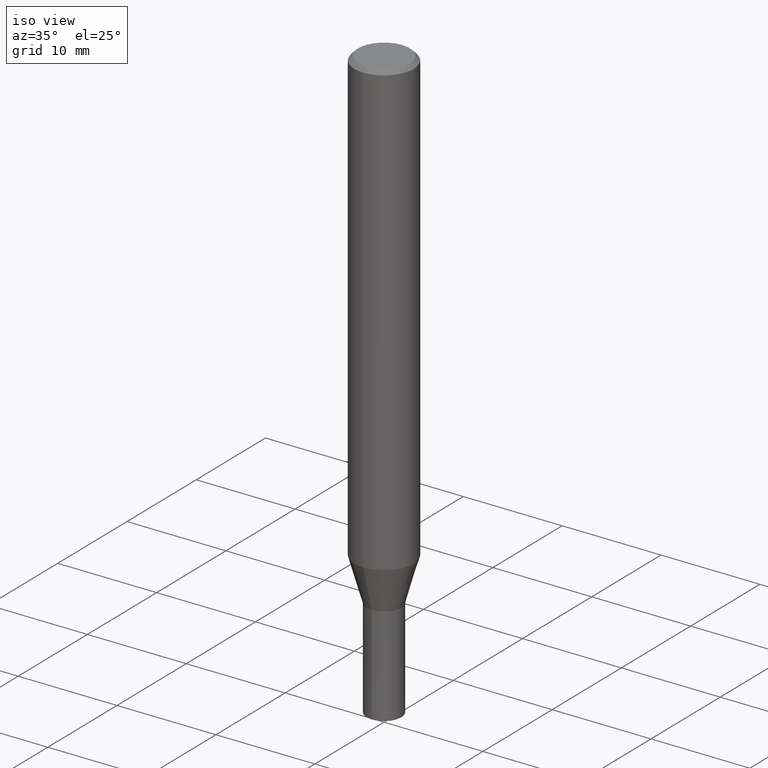
[diagram: clean part render]
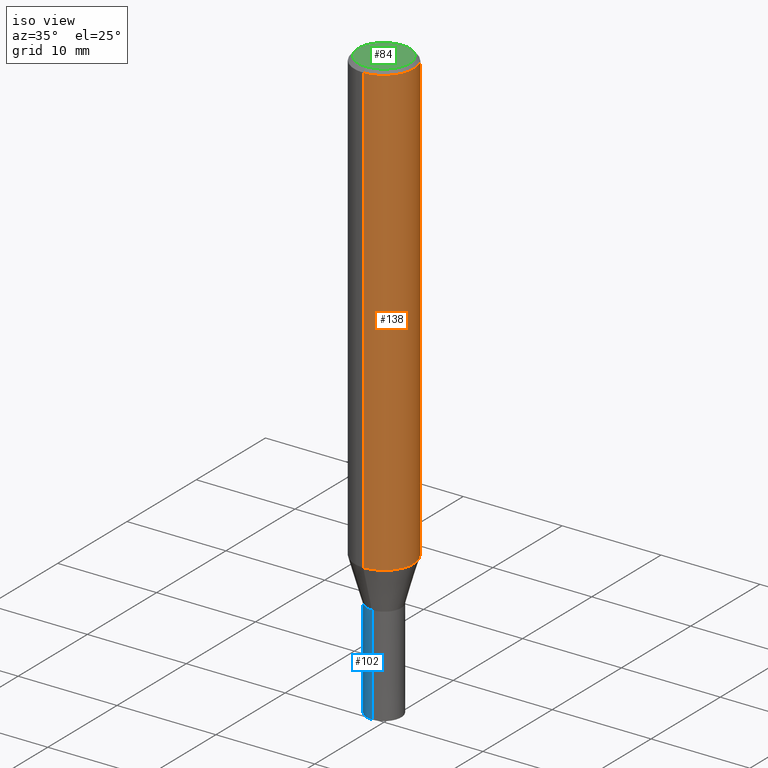
[diagram: same view with three faces highlighted in distinct colors, each labeled with its STEP entity id]
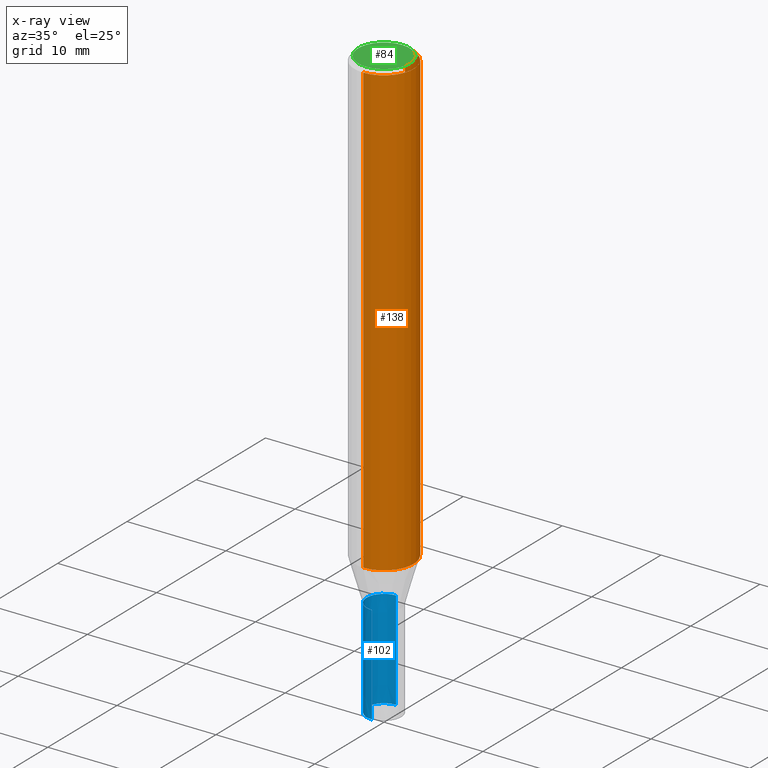
[diagram: x-ray of the same camera — body ghosted, the three highlighted faces saturated]
A machine part, iso view with three faces highlighted in distinct colors.
The next image is the same camera in x-ray (body ghosted, the three faces saturated) — at least one of them is partly hidden behind the body in this view.
Their STEP definitions:

[orange] entity #138 — the highlighted cylindrical surface (edge-blend (fillet) strip) has radius 3 mm, axis along (-0, -0, 1).
#92=VERTEX_POINT('',#214);
#98=VERTEX_POINT('',#220);
#114=EDGE_CURVE('',#168,#92,#240,.T.);
#116=EDGE_CURVE('',#122,#168,#242,.T.);
#122=VERTEX_POINT('',#248);
#138=ADVANCED_FACE('',(#265),#266,.T.);
#148=EDGE_CURVE('',#122,#98,#278,.T.);
#168=VERTEX_POINT('',#300);
#178=EDGE_CURVE('',#92,#98,#310,.T.);
#214=CARTESIAN_POINT('',(3.67381906146713E-016,-3.0,-45.641));
#220=CARTESIAN_POINT('',(3.67381906146713E-016,-3.0,-0.399999999999999));
#240=CIRCLE('',#377,3.0);
#242=LINE('',#380,#381);
#248=CARTESIAN_POINT('',(0.0,3.0,-0.399999999999999));
#265=FACE_OUTER_BOUND('',#408,.T.);
#266=CYLINDRICAL_SURFACE('',#409,3.0);
#278=CIRCLE('',#425,3.0);
#300=CARTESIAN_POINT('',(0.0,3.0,-45.641));
#310=LINE('',#464,#465);
#377=AXIS2_PLACEMENT_3D('',#527,#528,#529);
#380=CARTESIAN_POINT('',(-3.67381906146713E-016,3.0,-23.0205));
#381=VECTOR('',#530,1.0);
#408=EDGE_LOOP('',(#547,#548,#549,#550));
#409=AXIS2_PLACEMENT_3D('',#551,#552,#553);
#425=AXIS2_PLACEMENT_3D('',#574,#575,#576);
#464=CARTESIAN_POINT('',(3.67381906146713E-016,-3.0,-23.0205));
#465=VECTOR('',#609,1.0);
#527=CARTESIAN_POINT('',(0.0,0.0,-45.641));
#528=DIRECTION('',(0.0,0.0,-1.0));
#529=DIRECTION('',(0.0,1.0,0.0));
#530=DIRECTION('',(0.0,0.0,-1.0));
#547=ORIENTED_EDGE('',*,*,#116,.F.);
#548=ORIENTED_EDGE('',*,*,#148,.T.);
#549=ORIENTED_EDGE('',*,*,#178,.F.);
#550=ORIENTED_EDGE('',*,*,#114,.F.);
#551=CARTESIAN_POINT('',(0.0,0.0,-23.0205));
#552=DIRECTION('',(-0.0,-0.0,1.0));
#553=DIRECTION('',(0.0,1.0,0.0));
#574=CARTESIAN_POINT('',(0.0,0.0,-0.399999999999999));
#575=DIRECTION('',(0.0,0.0,-1.0));
#576=DIRECTION('',(0.0,1.0,0.0));
#609=DIRECTION('',(-0.0,-0.0,1.0));

[blue] entity #102 — the highlighted conical surface has half-angle 0.001 deg.
#90=EDGE_CURVE('',#158,#174,#212,.T.);
#102=ADVANCED_FACE('',(#224),#225,.T.);
#152=EDGE_CURVE('',#180,#174,#282,.T.);
#154=VERTEX_POINT('',#284);
#158=VERTEX_POINT('',#288);
#164=EDGE_CURVE('',#154,#180,#295,.T.);
#172=EDGE_CURVE('',#158,#154,#304,.T.);
#174=VERTEX_POINT('',#306);
#180=VERTEX_POINT('',#312);
#212=CIRCLE('',#341,1.75);
#224=FACE_OUTER_BOUND('',#356,.T.);
#225=CONICAL_SURFACE('',#357,1.74995,9.99999999966557E-006);
#282=LINE('',#429,#430);
#284=CARTESIAN_POINT('',(2.14293865855378E-016,-1.7499,-50.0));
#288=CARTESIAN_POINT('',(2.14306111918916E-016,-1.75,-60.0));
#295=CIRCLE('',#444,1.7499);
#304=LINE('',#455,#456);
#306=CARTESIAN_POINT('',(0.0,1.75,-60.0));
#312=CARTESIAN_POINT('',(0.0,1.7499,-50.0));
#341=AXIS2_PLACEMENT_3D('',#485,#486,#487);
#356=EDGE_LOOP('',(#498,#499,#500,#501));
#357=AXIS2_PLACEMENT_3D('',#502,#503,#504);
#429=CARTESIAN_POINT('',(-2.14299988887147E-016,1.74995,-55.0));
#430=VECTOR('',#578,1.0);
#444=AXIS2_PLACEMENT_3D('',#591,#592,#593);
#455=CARTESIAN_POINT('',(2.14299988887147E-016,-1.74995,-55.0));
#456=VECTOR('',#605,1.0);
#485=CARTESIAN_POINT('',(0.0,0.0,-60.0));
#486=DIRECTION('',(0.0,0.0,-1.0));
#487=DIRECTION('',(0.0,1.0,0.0));
#498=ORIENTED_EDGE('',*,*,#152,.T.);
#499=ORIENTED_EDGE('',*,*,#90,.F.);
#500=ORIENTED_EDGE('',*,*,#172,.T.);
#501=ORIENTED_EDGE('',*,*,#164,.T.);
#502=CARTESIAN_POINT('',(0.0,0.0,-55.0));
#503=DIRECTION('',(0.0,-0.0,-1.0));
#504=DIRECTION('',(0.0,1.0,0.0));
#578=DIRECTION('',(-1.22460635376101E-021,9.9999999994989E-006,-0.99999999995));
#591=CARTESIAN_POINT('',(0.0,0.0,-50.0));
#592=DIRECTION('',(0.0,0.0,-1.0));
#593=DIRECTION('',(0.0,1.0,0.0));
#605=DIRECTION('',(-1.22460635376101E-021,9.9999999994989E-006,0.99999999995));

[green] entity #84 — the highlighted planar face has unit normal (-0, 0, 1).
#84=ADVANCED_FACE('',(#205),#206,.T.);
#86=VERTEX_POINT('',#208);
#96=EDGE_CURVE('',#132,#86,#218,.T.);
#128=EDGE_CURVE('',#86,#132,#254,.T.);
#132=VERTEX_POINT('',#258);
#205=FACE_OUTER_BOUND('',#332,.T.);
#206=PLANE('',#333);
#208=CARTESIAN_POINT('',(3.18397651993818E-016,-2.6,0.0));
#218=CIRCLE('',#349,2.6);
#254=CIRCLE('',#394,2.6);
#258=CARTESIAN_POINT('',(0.0,2.6,0.0));
#332=EDGE_LOOP('',(#477,#478));
#333=AXIS2_PLACEMENT_3D('',#479,#480,#481);
#349=AXIS2_PLACEMENT_3D('',#491,#492,#493);
#394=AXIS2_PLACEMENT_3D('',#531,#532,#533);
#477=ORIENTED_EDGE('',*,*,#96,.F.);
#478=ORIENTED_EDGE('',*,*,#128,.F.);
#479=CARTESIAN_POINT('',(0.0,1.3,0.0));
#480=DIRECTION('',(-0.0,0.0,1.0));
#481=DIRECTION('',(0.0,-1.0,0.0));
#491=CARTESIAN_POINT('',(0.0,0.0,0.0));
#492=DIRECTION('',(0.0,0.0,-1.0));
#493=DIRECTION('',(0.0,1.0,0.0));
#531=CARTESIAN_POINT('',(0.0,0.0,0.0));
#532=DIRECTION('',(0.0,0.0,-1.0));
#533=DIRECTION('',(0.0,1.0,0.0));